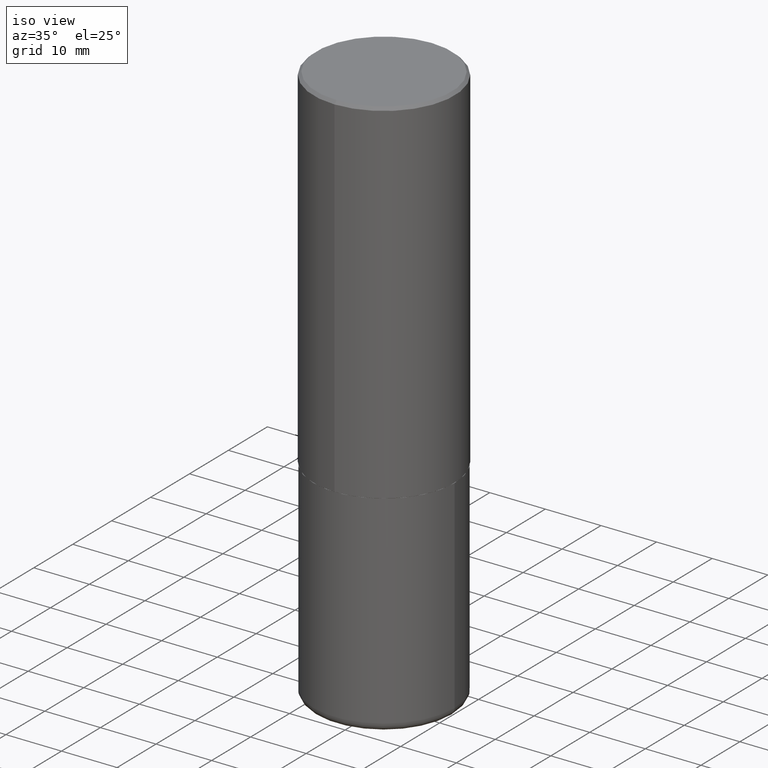
[diagram: clean part render]
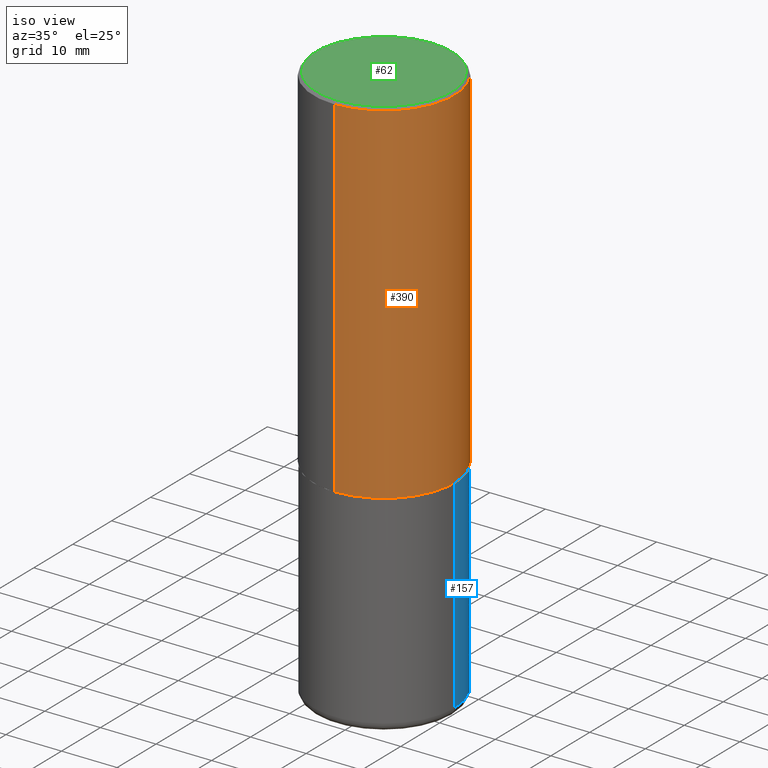
[diagram: same view with three faces highlighted in distinct colors, each labeled with its STEP entity id]
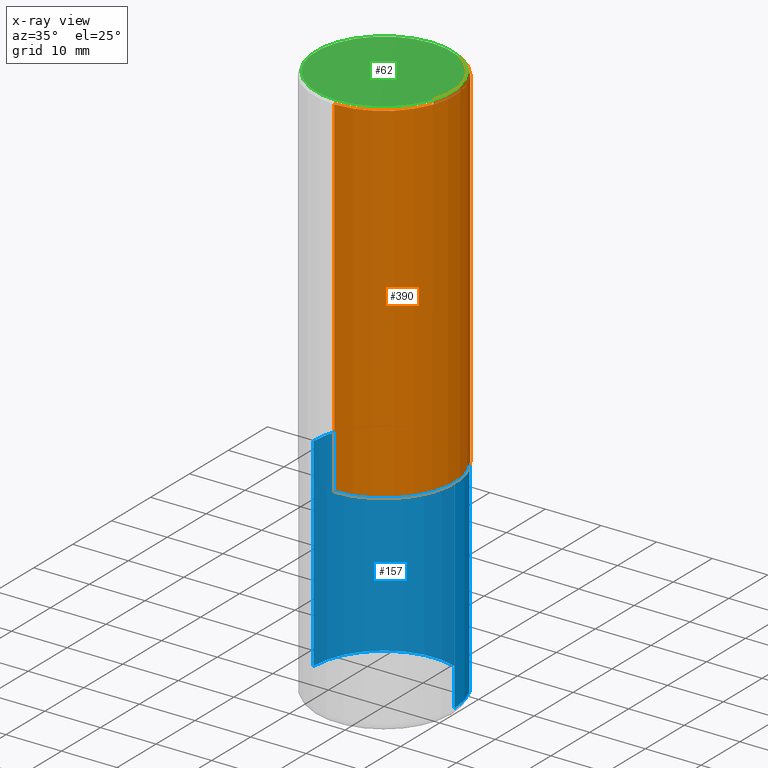
[diagram: x-ray of the same camera — body ghosted, the three highlighted faces saturated]
A machine part, iso view with three faces highlighted in distinct colors.
The next image is the same camera in x-ray (body ghosted, the three faces saturated) — at least one of them is partly hidden behind the body in this view.
Their STEP definitions:

[orange] entity #390 — the highlighted cylindrical surface (partial cylindrical patch) has radius 12.7 mm, axis along (-0, 0, 1).
#12 = CARTESIAN_POINT ( 'NONE',  ( 0.000000000000000000, 0.000000000000000000, 0.000000000000000000 ) ) ;
#27 = ORIENTED_EDGE ( 'NONE', *, *, #60, .T. ) ;
#43 = VECTOR ( 'NONE', #143, 39.37007874015748143 ) ;
#44 = DIRECTION ( 'NONE',  ( -2.444946167972934928E-29, 3.492229786509738161E-15, 1.000000000000000000 ) ) ;
#47 = DIRECTION ( 'NONE',  ( -6.982962677686265922E-15, -1.000000000000000000, 3.492229786509738161E-15 ) ) ;
#55 = CARTESIAN_POINT ( 'NONE',  ( 3.491481338843133355E-15, 0.4999999999999999445, -0.02000000000000185310 ) ) ;
#60 = EDGE_CURVE ( 'NONE', #231, #166, #145, .T. ) ;
#63 = EDGE_LOOP ( 'NONE', ( #27, #192, #168, #323 ) ) ;
#64 = VERTEX_POINT ( 'NONE', #268 ) ;
#65 = CIRCLE ( 'NONE', #66, 0.5000000000000000000 ) ;
#66 = AXIS2_PLACEMENT_3D ( 'NONE', #303, #44, #104 ) ;
#74 = CARTESIAN_POINT ( 'NONE',  ( 3.552713678800533273E-15, 0.4999999999999916178, -2.499000000000001886 ) ) ;
#77 = DIRECTION ( 'NONE',  ( -2.444946167972934928E-29, 3.492229786509738161E-15, 1.000000000000000000 ) ) ;
#90 = EDGE_CURVE ( 'NONE', #64, #228, #65, .T. ) ;
#104 = DIRECTION ( 'NONE',  ( -6.982962677686265922E-15, -1.000000000000000000, 3.491643216902136408E-15 ) ) ;
#120 = AXIS2_PLACEMENT_3D ( 'NONE', #12, #146, #47 ) ;
#137 = CARTESIAN_POINT ( 'NONE',  ( 6.109920473764365540E-29, -8.727082236487837614E-15, -2.499000000000000110 ) ) ;
#140 = FACE_OUTER_BOUND ( 'NONE', #63, .T. ) ;
#143 = DIRECTION ( 'NONE',  ( -2.444946167972934928E-29, 3.492229786509738161E-15, 1.000000000000000000 ) ) ;
#145 = CIRCLE ( 'NONE', #388, 0.5000000000000002220 ) ;
#146 = DIRECTION ( 'NONE',  ( -2.444946167972934928E-29, 3.492229786509738161E-15, 1.000000000000000000 ) ) ;
#166 = VERTEX_POINT ( 'NONE', #74 ) ;
#168 = ORIENTED_EDGE ( 'NONE', *, *, #90, .F. ) ;
#187 = LINE ( 'NONE', #381, #226 ) ;
#192 = ORIENTED_EDGE ( 'NONE', *, *, #280, .T. ) ;
#206 = CYLINDRICAL_SURFACE ( 'NONE', #120, 0.5000000000000001110 ) ;
#226 = VECTOR ( 'NONE', #308, 39.37007874015748143 ) ;
#228 = VERTEX_POINT ( 'NONE', #55 ) ;
#231 = VERTEX_POINT ( 'NONE', #412 ) ;
#232 = EDGE_CURVE ( 'NONE', #231, #64, #187, .T. ) ;
#267 = CARTESIAN_POINT ( 'NONE',  ( 3.552713678800501718E-15, 0.5000000000000001110, -1.746114893254869475E-15 ) ) ;
#268 = CARTESIAN_POINT ( 'NONE',  ( -3.430248998885764992E-15, -0.5000000000000001110, -0.01999999999999835937 ) ) ;
#280 = EDGE_CURVE ( 'NONE', #166, #228, #377, .T. ) ;
#303 = CARTESIAN_POINT ( 'NONE',  ( 4.889892335945895815E-31, -6.984459573019513448E-17, -0.02000000000000010797 ) ) ;
#308 = DIRECTION ( 'NONE',  ( -2.444946167972934928E-29, 3.492229786509738161E-15, 1.000000000000000000 ) ) ;
#323 = ORIENTED_EDGE ( 'NONE', *, *, #232, .F. ) ;
#336 = DIRECTION ( 'NONE',  ( -6.982962677686266711E-15, -1.000000000000000000, 3.278217592397114284E-15 ) ) ;
#377 = LINE ( 'NONE', #267, #43 ) ;
#381 = CARTESIAN_POINT ( 'NONE',  ( -3.491481338843133750E-15, -0.5000000000000001110, 1.746114893254869475E-15 ) ) ;
#388 = AXIS2_PLACEMENT_3D ( 'NONE', #137, #77, #336 ) ;
#390 = ADVANCED_FACE ( 'NONE', ( #140 ), #206, .T. ) ;
#412 = CARTESIAN_POINT ( 'NONE',  ( -3.491481338843073796E-15, -0.5000000000000089928, -2.498999999999998778 ) ) ;

[blue] entity #157 — the highlighted cylindrical surface (partial cylindrical patch) has radius 12.7 mm, axis along (-0, 0, 1).
#4 = AXIS2_PLACEMENT_3D ( 'NONE', #144, #272, #202 ) ;
#36 = ORIENTED_EDGE ( 'NONE', *, *, #286, .F. ) ;
#52 = DIRECTION ( 'NONE',  ( -2.445468806185136597E-29, 3.491481338843145583E-15, 1.000000000000000000 ) ) ;
#72 = CARTESIAN_POINT ( 'NONE',  ( 0.5000000000000000000, -1.222018468595099830E-14, -2.500000000000000000 ) ) ;
#81 = CARTESIAN_POINT ( 'NONE',  ( 0.5000000000000000000, -3.491481338843133355E-15, 2.438088387897967896E-29 ) ) ;
#102 = VERTEX_POINT ( 'NONE', #72 ) ;
#113 = CARTESIAN_POINT ( 'NONE',  ( 0.5000000000000001110, -1.724791781388512737E-14, -3.939999999999999947 ) ) ;
#114 = FACE_OUTER_BOUND ( 'NONE', #258, .T. ) ;
#128 = ORIENTED_EDGE ( 'NONE', *, *, #141, .T. ) ;
#135 = EDGE_CURVE ( 'NONE', #294, #360, #208, .T. ) ;
#141 = EDGE_CURVE ( 'NONE', #332, #294, #219, .T. ) ;
#144 = CARTESIAN_POINT ( 'NONE',  ( 9.635147096369438236E-29, -1.375643647504199401E-14, -3.939999999999999947 ) ) ;
#157 = ADVANCED_FACE ( 'NONE', ( #114 ), #334, .T. ) ;
#175 = CARTESIAN_POINT ( 'NONE',  ( -0.5000000000000001110, -1.020372279624149466E-14, -3.939999999999999947 ) ) ;
#202 = DIRECTION ( 'NONE',  ( 1.000000000000000000, -6.982962677686267499E-15, 0.000000000000000000 ) ) ;
#208 = LINE ( 'NONE', #401, #274 ) ;
#212 = CARTESIAN_POINT ( 'NONE',  ( 6.113672015462842613E-29, -8.728703347107864943E-15, -2.500000000000000000 ) ) ;
#219 = CIRCLE ( 'NONE', #4, 0.4999999999999999445 ) ;
#240 = DIRECTION ( 'NONE',  ( 1.000000000000000000, -6.982962677686269077E-15, 0.000000000000000000 ) ) ;
#244 = CARTESIAN_POINT ( 'NONE',  ( 0.000000000000000000, 0.000000000000000000, 0.000000000000000000 ) ) ;
#254 = EDGE_CURVE ( 'NONE', #332, #102, #379, .T. ) ;
#258 = EDGE_LOOP ( 'NONE', ( #128, #358, #36, #292 ) ) ;
#264 = DIRECTION ( 'NONE',  ( 1.000000000000000000, -6.982962677686266711E-15, 4.876176775795935793E-29 ) ) ;
#269 = AXIS2_PLACEMENT_3D ( 'NONE', #212, #52, #240 ) ;
#270 = CIRCLE ( 'NONE', #269, 0.5000000000000000000 ) ;
#272 = DIRECTION ( 'NONE',  ( -2.445468806185136597E-29, 3.491481338843145583E-15, 1.000000000000000000 ) ) ;
#274 = VECTOR ( 'NONE', #339, 39.37007874015748143 ) ;
#276 = DIRECTION ( 'NONE',  ( -2.445468806185136877E-29, 3.491481338843145188E-15, 1.000000000000000000 ) ) ;
#286 = EDGE_CURVE ( 'NONE', #102, #360, #270, .T. ) ;
#292 = ORIENTED_EDGE ( 'NONE', *, *, #254, .F. ) ;
#293 = AXIS2_PLACEMENT_3D ( 'NONE', #244, #378, #264 ) ;
#294 = VERTEX_POINT ( 'NONE', #175 ) ;
#332 = VERTEX_POINT ( 'NONE', #113 ) ;
#334 = CYLINDRICAL_SURFACE ( 'NONE', #293, 0.5000000000000000000 ) ;
#335 = CARTESIAN_POINT ( 'NONE',  ( -0.5000000000000000000, -7.689856232274428549E-15, -2.500000000000000000 ) ) ;
#339 = DIRECTION ( 'NONE',  ( -2.445468806185136877E-29, 3.491481338843145188E-15, 1.000000000000000000 ) ) ;
#358 = ORIENTED_EDGE ( 'NONE', *, *, #135, .T. ) ;
#360 = VERTEX_POINT ( 'NONE', #335 ) ;
#378 = DIRECTION ( 'NONE',  ( -2.445468806185136597E-29, 3.491481338843145583E-15, 1.000000000000000000 ) ) ;
#379 = LINE ( 'NONE', #81, #384 ) ;
#384 = VECTOR ( 'NONE', #276, 39.37007874015748143 ) ;
#401 = CARTESIAN_POINT ( 'NONE',  ( -0.5000000000000000000, 3.552713678800500929E-15, -2.459467545127452891E-29 ) ) ;

[green] entity #62 — the highlighted planar face has unit normal (0, -0, -1).
#16 = CARTESIAN_POINT ( 'NONE',  ( -5.540013713897219376E-45, 7.913058030796886371E-31, 2.265904168552862416E-16 ) ) ;
#20 = AXIS2_PLACEMENT_3D ( 'NONE', #266, #238, #41 ) ;
#22 = FACE_OUTER_BOUND ( 'NONE', #198, .T. ) ;
#37 = AXIS2_PLACEMENT_3D ( 'NONE', #375, #300, #341 ) ;
#41 = DIRECTION ( 'NONE',  ( 6.982962677686265922E-15, 1.000000000000000000, -3.492229786509738161E-15 ) ) ;
#48 = PLANE ( 'NONE',  #20 ) ;
#62 = ADVANCED_FACE ( 'NONE', ( #22 ), #48, .F. ) ;
#78 = DIRECTION ( 'NONE',  ( -2.444946167972934928E-29, 3.492229786509738161E-15, 1.000000000000000000 ) ) ;
#86 = CIRCLE ( 'NONE', #239, 0.4799999999999998157 ) ;
#109 = CARTESIAN_POINT ( 'NONE',  ( -3.361644018908049661E-15, -0.4799999999999998157, 1.902860714379959855E-15 ) ) ;
#150 = CARTESIAN_POINT ( 'NONE',  ( 3.421651712066270057E-15, 0.4799999999999998157, -1.449679880669387470E-15 ) ) ;
#198 = EDGE_LOOP ( 'NONE', ( #371, #418 ) ) ;
#238 = DIRECTION ( 'NONE',  ( 2.444946167972934647E-29, -3.492229786509738161E-15, -1.000000000000000000 ) ) ;
#239 = AXIS2_PLACEMENT_3D ( 'NONE', #16, #78, #343 ) ;
#261 = VERTEX_POINT ( 'NONE', #109 ) ;
#266 = CARTESIAN_POINT ( 'NONE',  ( 3.351822085289406364E-15, 0.4799999999999998157, -1.562975089097030468E-15 ) ) ;
#300 = DIRECTION ( 'NONE',  ( -2.444946167972934928E-29, 3.492229786509738161E-15, 1.000000000000000000 ) ) ;
#320 = EDGE_CURVE ( 'NONE', #326, #261, #86, .T. ) ;
#326 = VERTEX_POINT ( 'NONE', #150 ) ;
#328 = CIRCLE ( 'NONE', #37, 0.4799999999999998157 ) ;
#341 = DIRECTION ( 'NONE',  ( -6.982962677686265922E-15, -1.000000000000000000, 3.492229786509738161E-15 ) ) ;
#343 = DIRECTION ( 'NONE',  ( -6.982962677686265922E-15, -1.000000000000000000, 3.492229786509738161E-15 ) ) ;
#365 = EDGE_CURVE ( 'NONE', #261, #326, #328, .T. ) ;
#371 = ORIENTED_EDGE ( 'NONE', *, *, #320, .T. ) ;
#375 = CARTESIAN_POINT ( 'NONE',  ( -5.540013713897219376E-45, 7.913058030796886371E-31, 2.265904168552862416E-16 ) ) ;
#418 = ORIENTED_EDGE ( 'NONE', *, *, #365, .T. ) ;